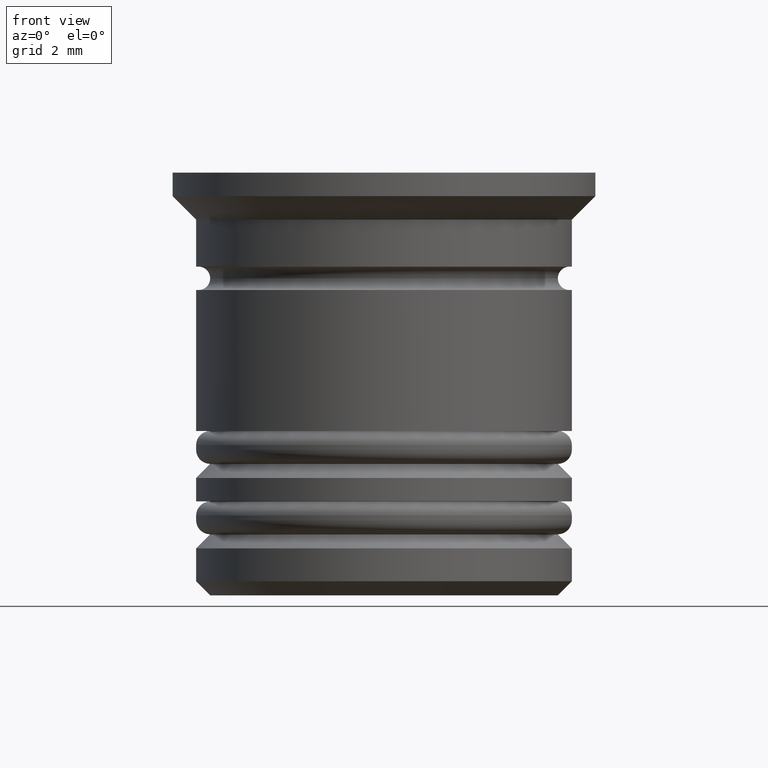
[diagram: clean part render]
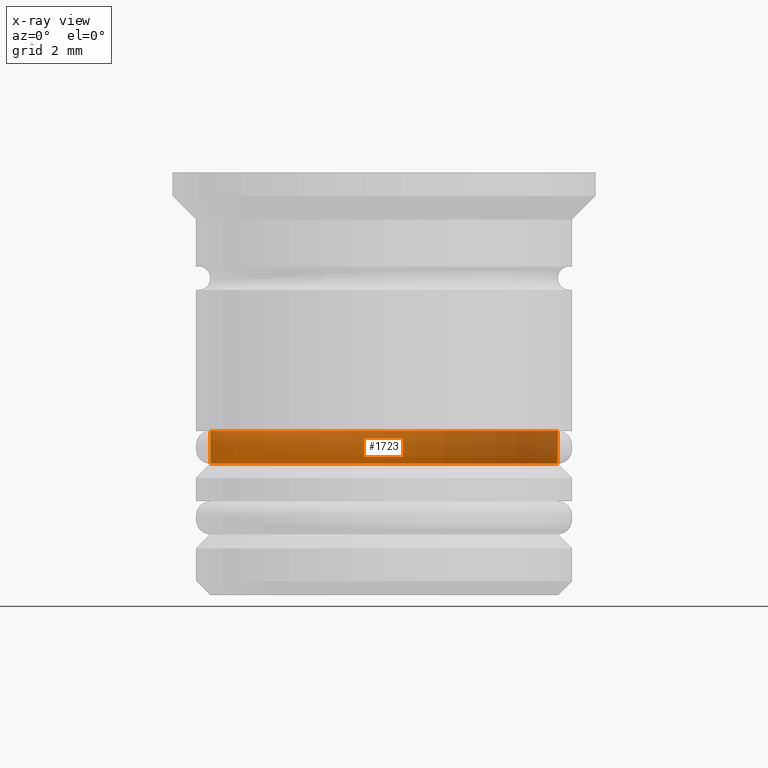
[diagram: x-ray — body ghosted, one internal face saturated and labeled with its STEP entity id]
A machine part, front view, then the same camera in x-ray: the body is ghosted and one INTERNAL B-rep face — a face not visible from any outside direction — is saturated and labeled: STEP entity #1723.
In plain terms, the highlighted cylindrical surface (partial cylindrical patch) has radius 3.7 mm, axis along (-0, -0, 1).
Its self-contained STEP definition (entity closure, byte-faithful):
#19 = FACE_OUTER_BOUND ( 'NONE', #508, .T. ) ;
#28 = ORIENTED_EDGE ( 'NONE', *, *, #121, .F. ) ;
#37 = AXIS2_PLACEMENT_3D ( 'NONE', #1894, #492, #945 ) ;
#89 = DIRECTION ( 'NONE',  ( -0.000000000000000000, -0.000000000000000000, 1.000000000000000000 ) ) ;
#121 = EDGE_CURVE ( 'NONE', #664, #1078, #1333, .T. ) ;
#270 = VERTEX_POINT ( 'NONE', #480 ) ;
#431 = AXIS2_PLACEMENT_3D ( 'NONE', #1185, #728, #1815 ) ;
#480 = CARTESIAN_POINT ( 'NONE',  ( -3.700000000000000178, 4.531193156845206201E-16, -6.200000000000004619 ) ) ;
#492 = DIRECTION ( 'NONE',  ( -0.000000000000000000, -0.000000000000000000, 1.000000000000000000 ) ) ;
#508 = EDGE_LOOP ( 'NONE', ( #1376, #1548, #1922, #28 ) ) ;
#514 = VERTEX_POINT ( 'NONE', #710 ) ;
#532 = CARTESIAN_POINT ( 'NONE',  ( -3.700000000000000178, 4.531193156845206201E-16, 0.000000000000000000 ) ) ;
#664 = VERTEX_POINT ( 'NONE', #1411 ) ;
#710 = CARTESIAN_POINT ( 'NONE',  ( -3.700000000000000178, 4.531193156845206201E-16, -5.500000000000000000 ) ) ;
#728 = DIRECTION ( 'NONE',  ( -0.000000000000000000, -0.000000000000000000, 1.000000000000000000 ) ) ;
#794 = AXIS2_PLACEMENT_3D ( 'NONE', #956, #1162, #1910 ) ;
#873 = CARTESIAN_POINT ( 'NONE',  ( 3.700000000000000178, 0.000000000000000000, 0.000000000000000000 ) ) ;
#920 = CIRCLE ( 'NONE', #431, 3.700000000000000178 ) ;
#945 = DIRECTION ( 'NONE',  ( 1.000000000000000000, 0.000000000000000000, 0.000000000000000000 ) ) ;
#956 = CARTESIAN_POINT ( 'NONE',  ( 0.000000000000000000, 0.000000000000000000, -6.200000000000004619 ) ) ;
#973 = VECTOR ( 'NONE', #89, 1000.000000000000000 ) ;
#994 = CARTESIAN_POINT ( 'NONE',  ( 3.700000000000000178, 0.000000000000000000, -5.500000000000000000 ) ) ;
#1078 = VERTEX_POINT ( 'NONE', #994 ) ;
#1162 = DIRECTION ( 'NONE',  ( -0.000000000000000000, -0.000000000000000000, 1.000000000000000000 ) ) ;
#1185 = CARTESIAN_POINT ( 'NONE',  ( 0.000000000000000000, 0.000000000000000000, -5.500000000000000000 ) ) ;
#1289 = LINE ( 'NONE', #532, #1743 ) ;
#1333 = LINE ( 'NONE', #873, #973 ) ;
#1376 = ORIENTED_EDGE ( 'NONE', *, *, #1864, .T. ) ;
#1411 = CARTESIAN_POINT ( 'NONE',  ( 3.700000000000000178, 0.000000000000000000, -6.200000000000004619 ) ) ;
#1548 = ORIENTED_EDGE ( 'NONE', *, *, #1888, .T. ) ;
#1661 = EDGE_CURVE ( 'NONE', #1078, #514, #920, .T. ) ;
#1679 = CIRCLE ( 'NONE', #794, 3.700000000000000178 ) ;
#1723 = ADVANCED_FACE ( 'NONE', ( #19 ), #1883, .T. ) ;
#1743 = VECTOR ( 'NONE', #1918, 1000.000000000000000 ) ;
#1815 = DIRECTION ( 'NONE',  ( 1.000000000000000000, 0.000000000000000000, 0.000000000000000000 ) ) ;
#1864 = EDGE_CURVE ( 'NONE', #664, #270, #1679, .T. ) ;
#1883 = CYLINDRICAL_SURFACE ( 'NONE', #37, 3.700000000000000178 ) ;
#1888 = EDGE_CURVE ( 'NONE', #270, #514, #1289, .T. ) ;
#1894 = CARTESIAN_POINT ( 'NONE',  ( 0.000000000000000000, 0.000000000000000000, 0.000000000000000000 ) ) ;
#1910 = DIRECTION ( 'NONE',  ( -1.000000000000000000, 0.000000000000000000, 0.000000000000000000 ) ) ;
#1918 = DIRECTION ( 'NONE',  ( -0.000000000000000000, -0.000000000000000000, 1.000000000000000000 ) ) ;
#1922 = ORIENTED_EDGE ( 'NONE', *, *, #1661, .F. ) ;